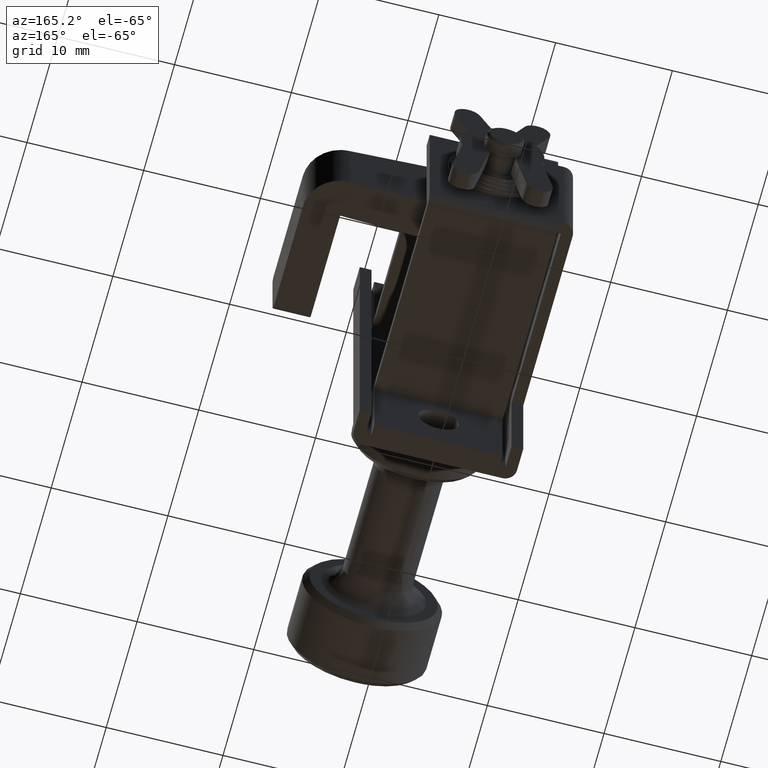
[diagram: clean part render]
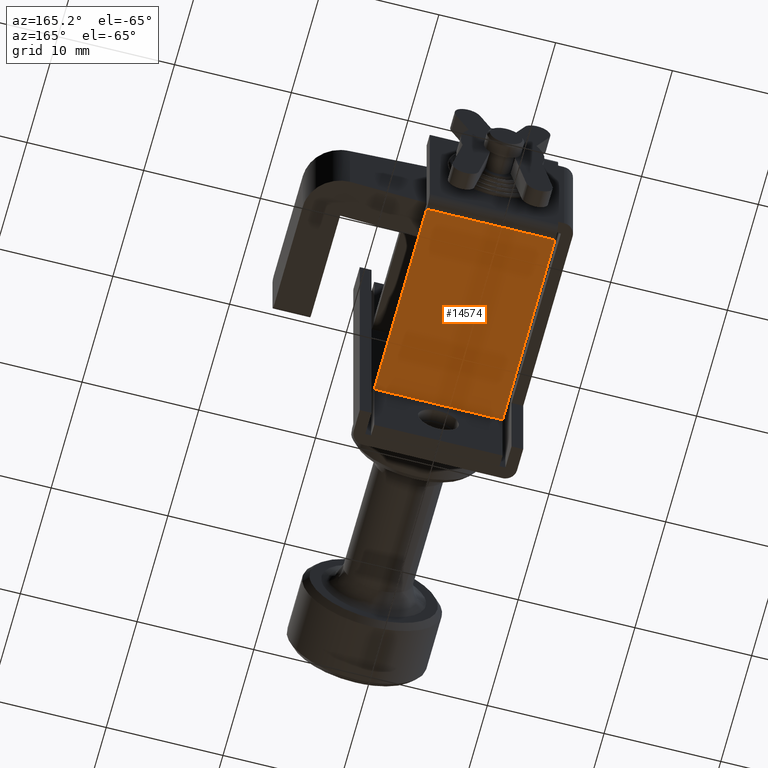
[diagram: same view with one face highlighted and labeled with its STEP entity id]
A machine part, auxiliary view. The second image highlights one B-rep face of the part: STEP entity #14574.
In plain terms, the highlighted face is a freeform B-spline surface patch.
Its self-contained STEP definition (entity closure, byte-faithful):
#14423=CARTESIAN_POINT('',(2.0,5.500000000000000,-7.0));
#14424=VERTEX_POINT('',#14423);
#14430=CARTESIAN_POINT('',(2.0,-5.500000000000000,-7.0));
#14431=VERTEX_POINT('',#14430);
#14432=CARTESIAN_POINT('',(2.0,5.500000000000000,-7.0));
#14433=CARTESIAN_POINT('',(2.0,-5.500000000000000,-7.0));
#14434=QUASI_UNIFORM_CURVE('',1,(#14432,#14433),.UNSPECIFIED.,.F.,.U.);
#14435=EDGE_CURVE('',#14424,#14431,#14434,.T.);
#14490=CARTESIAN_POINT('',(19.0,5.500000000000000,-7.0));
#14491=VERTEX_POINT('',#14490);
#14505=CARTESIAN_POINT('',(2.0,5.500000000000000,-7.0));
#14506=CARTESIAN_POINT('',(19.0,5.500000000000000,-7.0));
#14507=QUASI_UNIFORM_CURVE('',1,(#14505,#14506),.UNSPECIFIED.,.F.,.U.);
#14508=EDGE_CURVE('',#14424,#14491,#14507,.T.);
#14536=CARTESIAN_POINT('',(19.0,-5.500000000000000,-7.0));
#14537=VERTEX_POINT('',#14536);
#14551=CARTESIAN_POINT('',(19.0,-5.500000000000000,-7.0));
#14552=CARTESIAN_POINT('',(19.0,5.500000000000000,-7.0));
#14553=QUASI_UNIFORM_CURVE('',1,(#14551,#14552),.UNSPECIFIED.,.F.,.U.);
#14554=EDGE_CURVE('',#14537,#14491,#14553,.T.);
#14559=CARTESIAN_POINT('',(1.150850032949299,-6.049449978679865,-7.0));
#14560=CARTESIAN_POINT('',(19.849150423026231,-6.049449978679865,-7.0));
#14561=CARTESIAN_POINT('',(1.150850032949299,6.049450273722857,-7.0));
#14562=CARTESIAN_POINT('',(19.849150423026231,6.049450273722857,-7.0));
#14563=B_SPLINE_SURFACE_WITH_KNOTS('',1,1,((#14559,#14561),(#14560,#14562)),.UNSPECIFIED.,.F.,.F.,.U.,(2,2),(2,2),(0.0,18.698300390076930),(0.0,12.098900252402720),.UNSPECIFIED.);
#14564=CARTESIAN_POINT('',(2.0,-5.500000000000000,-7.0));
#14565=CARTESIAN_POINT('',(19.0,-5.500000000000000,-7.0));
#14566=QUASI_UNIFORM_CURVE('',1,(#14564,#14565),.UNSPECIFIED.,.F.,.U.);
#14567=EDGE_CURVE('',#14431,#14537,#14566,.T.);
#14568=ORIENTED_EDGE('',*,*,#14567,.F.);
#14569=ORIENTED_EDGE('',*,*,#14435,.F.);
#14570=ORIENTED_EDGE('',*,*,#14508,.T.);
#14571=ORIENTED_EDGE('',*,*,#14554,.F.);
#14572=EDGE_LOOP('',(#14568,#14569,#14570,#14571));
#14573=FACE_OUTER_BOUND('',#14572,.T.);
#14574=ADVANCED_FACE('',(#14573),#14563,.F.);